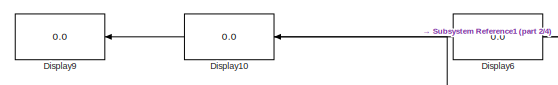
[diagram: root canvas - part 1/4, top center region]
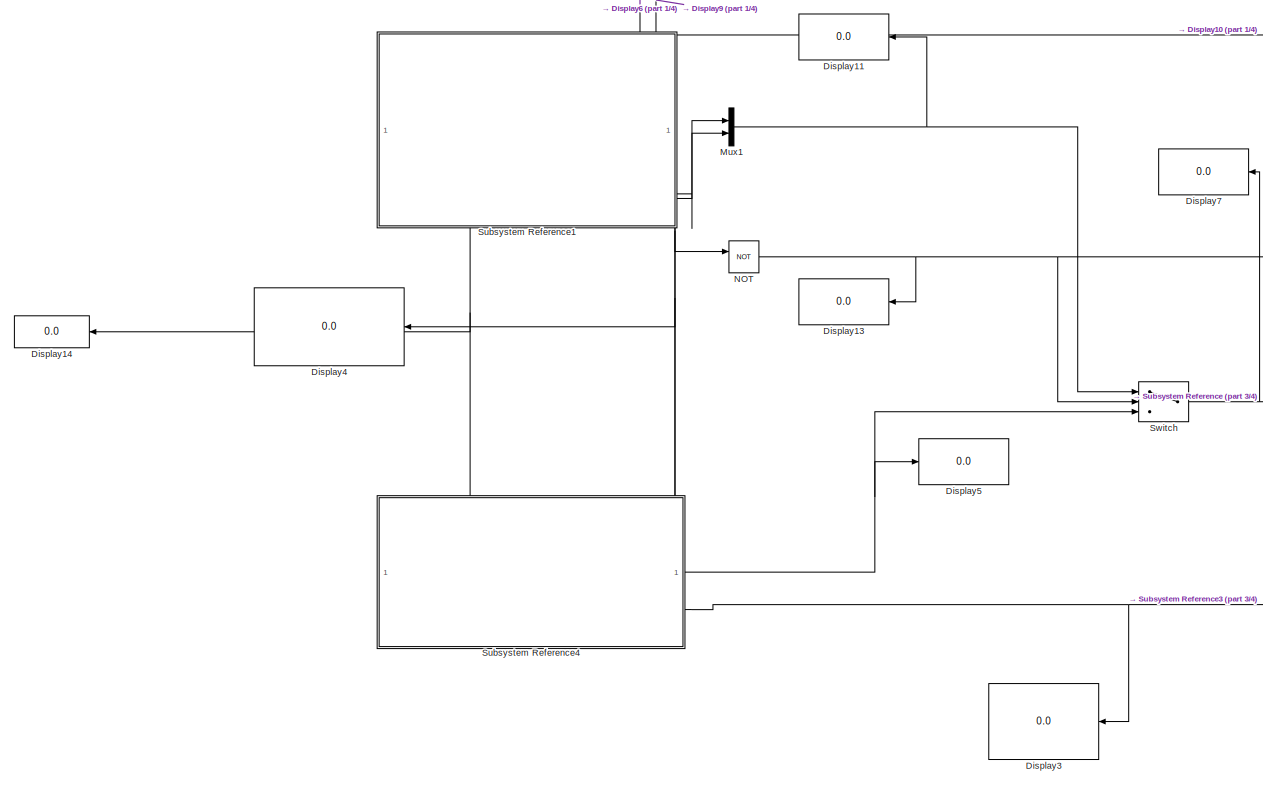
[diagram: root canvas - part 2/4, central region]
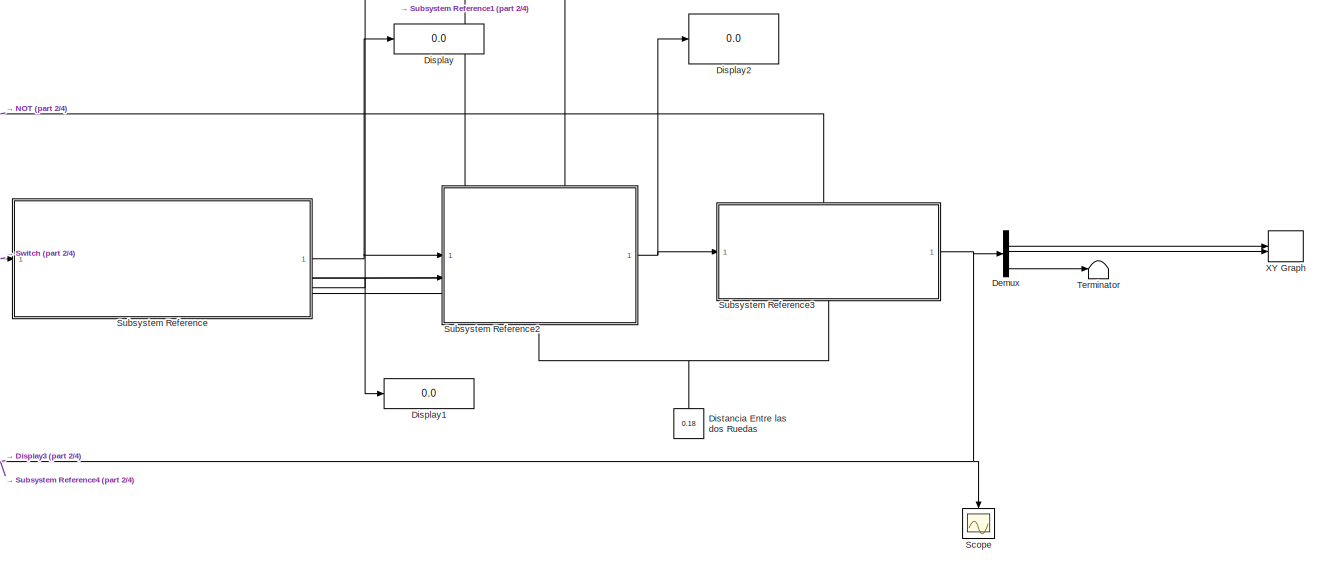
[diagram: root canvas - part 3/4, middle right region]
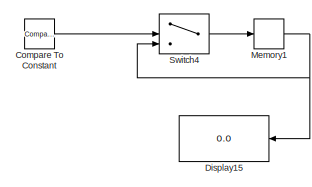
[diagram: root canvas - part 4/4, bottom left region]
MODEL slx_d26477fc12f4
KIND model
CONFIG AbsTol = auto
CONFIG EnableMultiTasking = on
CONFIG FixedStep = 0.01
CONFIG MaxStep = auto
CONFIG MinStep = auto
CONFIG RelTol = 1e-3
CONFIG SampleTimeConstraint = Unconstrained
CONFIG SolverName = FixedStepDiscrete
CONFIG StartTime = 0.0
CONFIG StopTime = inf
BLOCK [Reference] Compare To Constant  REF=simulink/Logic and Bit
Operations/Compare
To Constant
  Commented = on
  SourceBlock = simulink/Logic and Bit\nOperations/Compare\nTo Constant
  SourceType = Compare To Constant
BLOCK [Demux] Demux
  Outputs = 3
BLOCK [Display] Display
  Decimation = 1
BLOCK [Display] Display1
  Decimation = 1
BLOCK [Display] Display10
  Decimation = 1
BLOCK [Display] Display11
  Decimation = 1
BLOCK [Display] Display13
  Decimation = 1
BLOCK [Display] Display14
  Decimation = 1
BLOCK [Display] Display15
  Commented = on
  Decimation = 1
BLOCK [Display] Display2
  Decimation = 1
BLOCK [Display] Display3
  Decimation = 1
BLOCK [Display] Display4
  Decimation = 1
BLOCK [Display] Display5
  Decimation = 1
BLOCK [Display] Display6
  Decimation = 1
  NameLocation = top
BLOCK [Display] Display7
  Decimation = 1
BLOCK [Display] Display9
  Decimation = 1
BLOCK [Constant] Distancia Entre las dos Ruedas
  NameLocation = right
  Value = 0.18
BLOCK [Memory] Memory1
  Commented = on
BLOCK [Mux] Mux1
  DisplayOption = bar
  Inputs = 2
BLOCK [Logic] NOT
  AllPortsSameDT = off
  IconShape = distinctive
  Operator = NOT
  OutDataTypeStr = boolean
BLOCK [Scope] Scope
  Floating = off
  NameLocation = left
  NumInputPorts = 1
  ScopeSpecificationString = Simulink.scopes.TimeScopeBlockCfg('CurrentConfiguration', extmgr.ConfigurationSet(extmgr.Configuration('Core','General UI',true),extmgr.Configuration('Core','Source UI',true),extmgr.Configuration('Sources','WiredSimulink',true),extmgr.Configuration('Visuals','Time Domain',true,'SerializedDisplays',{struct('MinYLimReal','-1.00000','MaxYLimReal','1.00000','YLabelReal','','MinYLimMag','0.00000','MaxY...<+1510ch>
BLOCK [SubSystem] Subsystem Reference
  PortSchema = {"entries":[{"content":{"sides":[{"content":{"connectorIds":["In1"]},"type":"ConnectorPlacement.EquallySpacedRectSide","uuid":"42fc63ee-98cb-4907-b38c-798ae802ff5d"},{"content":{"connectorIds":["Out1","Out2"],"side":"RIGHT"},"type":"ConnectorPlacement.EquallySpacedRectSide","uuid":"0ed8d766-5a28-4c23-ac29-cceb2cc32c2c"},{"content":{"connectorIds":["In3","In2","In4"],"side":"TOP"},"type":"Connector...<+264ch>
  ReferencedSubsystem = Sistema_Anticolision
BLOCK [SubSystem] Subsystem Reference1
  PortSchema = {"entries":[{"content":{"sides":[{"content":{"connectorIds":["Out1","Out2","Out3","Out4"]},"type":"ConnectorPlacement.EquallySpacedRectSide","uuid":"a56949d1-7f92-4724-9664-723f4f44e9a8"},{"content":{"connectorIds":["Out5","Out6"],"side":"RIGHT"},"type":"ConnectorPlacement.EquallySpacedRectSide","uuid":"c498c9c1-5976-4c0f-a0df-b3be65168487"},{"content":{"side":"TOP"},"type":"ConnectorPlacement.Equ...<+408ch>
  ReferencedSubsystem = Bluetooth_Total
BLOCK [SubSystem] Subsystem Reference2
  PortSchema = {"entries":[{"content":{"sides":[{"content":{"connectorIds":["In1","In2"]},"type":"ConnectorPlacement.EquallySpacedRectSide","uuid":"296ec3ce-a2cd-47ea-b6d2-93e60c3d408c"},{"content":{"connectorIds":["Out1"],"side":"RIGHT"},"type":"ConnectorPlacement.EquallySpacedRectSide","uuid":"4b69a479-ec69-4494-a3b5-f93cec5223a5"},{"content":{"side":"TOP"},"type":"ConnectorPlacement.EquallySpacedRectSide","uu...<+377ch>
  ReferencedSubsystem = Control_Velocidad
BLOCK [SubSystem] Subsystem Reference3
  PortSchema = {"entries":[{"content":{"sides":[{"content":{"connectorIds":["In1"]},"type":"ConnectorPlacement.EquallySpacedRectSide","uuid":"7855b2c1-0050-4d66-864b-7e2be2e7053b"},{"content":{"connectorIds":["Out1"],"side":"RIGHT"},"type":"ConnectorPlacement.EquallySpacedRectSide","uuid":"cfa3be09-6f70-47d5-b84a-2b36332d9961"},{"content":{"connectorIds":["In3"],"side":"TOP"},"type":"ConnectorPlacement.EquallySp...<+394ch>
  ReferencedSubsystem = Odometria
BLOCK [SubSystem] Subsystem Reference4
  PortSchema = {"entries":[{"content":{"sides":[{"content":{"connectorIds":["In1"]},"type":"ConnectorPlacement.EquallySpacedRectSide","uuid":"08df0637-2ae2-4e87-a9d9-1ec8d8596a53"},{"content":{"connectorIds":["Out1","In3"],"side":"RIGHT"},"type":"ConnectorPlacement.EquallySpacedRectSide","uuid":"de3ed313-afe8-4aed-b02f-6990a35e31b2"},{"content":{"connectorIds":["In4","In2"],"side":"TOP"},"type":"ConnectorPlaceme...<+257ch>
  ReferencedSubsystem = Trayectoria
BLOCK [Switch] Switch
  Criteria = u2 ~= 0
  InputSameDT = off
  SaturateOnIntegerOverflow = off
BLOCK [Switch] Switch4
  Commented = on
  Criteria = u2 ~= 0
  InputSameDT = off
  SaturateOnIntegerOverflow = off
BLOCK [Terminator] Terminator
BLOCK [Record] XY Graph
  CompatibilityTag = XY
  FileSettingsInternal = {"entries":[{"content":{"excelSettings":{"content":{},"type":"Streamout.ExcelSettings"}},"type":"Streamout.FileSettingStorage","uuid":""}],"packageUris":["http:\/\/schema.mathworks.com\/mf0\/streamout_blocks\/R2020a"],"version":"1.0"}
  Layout = [1 1]
  SignalsInternal = {"entries":[{"content":{"signals":[{"content":{"blockPath":[],"dimensions":[1],"domain":"","lineColor":"#a2142f","plots":[ 1 ],"port":1,"signalID":1,"signalName":"Demux:1"},"type":"RecordBlkView.Signal","uuid":""},{"content":{"blockPath":[],"dimensions":[1],"domain":"","lineColor":"#139fff","plots":[ 1 ],"port":2,"signalID":2,"signalName":"Demux:2"},"type":"RecordBlkView.Signal","uuid":""}]},"type...<+138ch>
  VisualizationBindings = {"xyplotplugin":{"info":[{"series":[{"bindingParametersList":[{"parameter":"X-Axis","signalID":1,"signalName":"Demux:1"},{"parameter":"Y-Axis","signalID":2,"signalName":"Demux:2"}],"seriesID":0}],"subplotID":1}]}}
LINE Compare To Constant:1 -> Switch4:2
LINE Demux:1 -> XY Graph:1
LINE Demux:2 -> XY Graph:2
LINE Demux:3 -> Terminator:1
NET Distancia Entre las dos Ruedas:1 -> Subsystem Reference2:3, Subsystem Reference3:2
NET Memory1:1 -> Display15:1, Switch4:3
NET Mux1:1 -> Display11:1, Switch:1
NET NOT:1 -> Display13:1, Subsystem Reference3:3, Switch:2
NET Subsystem Reference1:1 -> Display10:1, Subsystem Reference:2
NET Subsystem Reference1:2 -> Display9:1, Subsystem Reference:3
NET Subsystem Reference1:3 -> Display6:1, Subsystem Reference:4
NET Subsystem Reference1:4 -> Display14:1, Subsystem Reference4:1
LINE Subsystem Reference1:5 -> Mux1:1
LINE Subsystem Reference1:6 -> Mux1:2
NET Subsystem Reference1:7 -> Display4:1, Subsystem Reference4:4
NET Subsystem Reference1:8 -> NOT:1, Subsystem Reference4:2
NET Subsystem Reference2:1 -> Display2:1, Subsystem Reference3:1
NET Subsystem Reference3:1 -> Demux:1, Display3:1, Scope:1, Subsystem Reference4:3
NET Subsystem Reference4:1 -> Display5:1, Switch:3
NET Subsystem Reference:1 -> Display:1, Subsystem Reference2:1
NET Subsystem Reference:2 -> Display1:1, Subsystem Reference2:2
LINE Switch4:1 -> Memory1:1
NET Switch:1 -> Display7:1, Subsystem Reference:1
note: NET lines group one-source signal fan-out (src -> all destinations, sorted); 1:1 wires keep LINE
